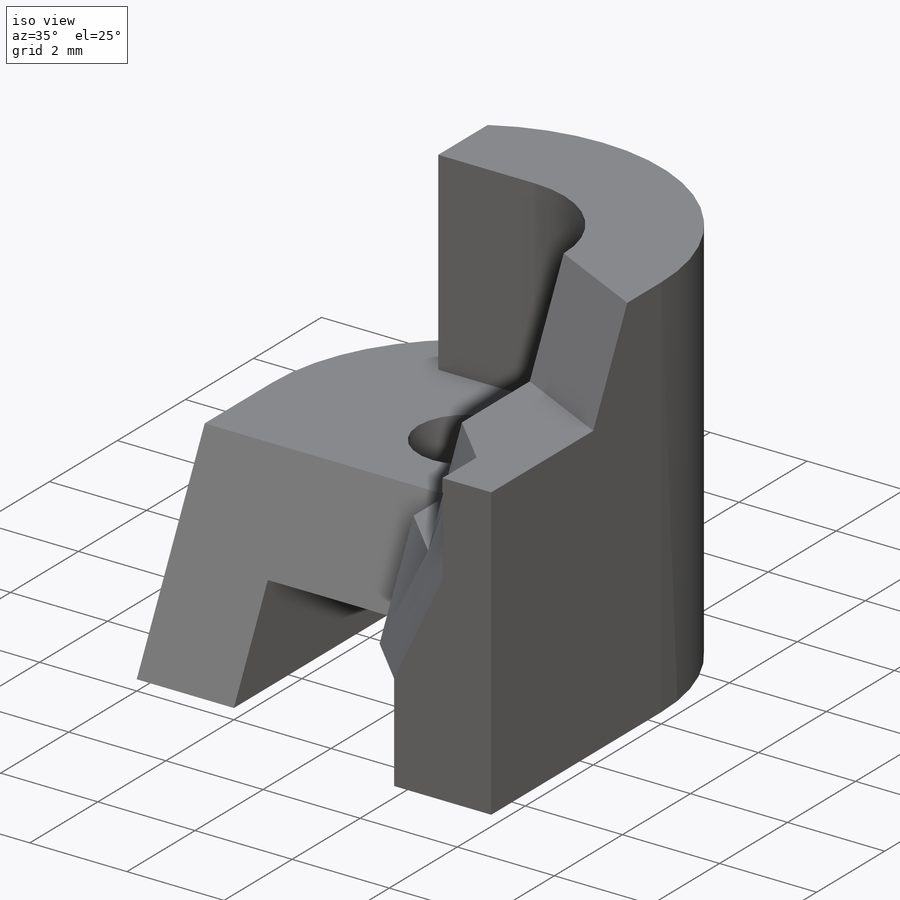
[diagram: iso view]
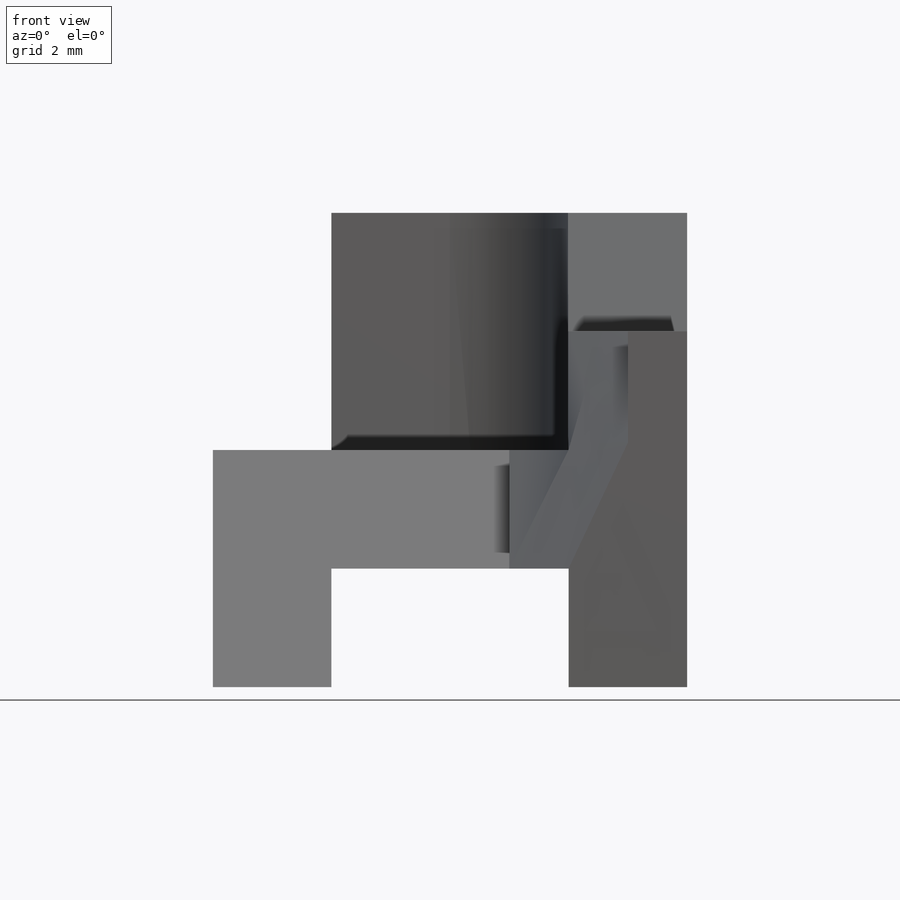
[diagram: front view]
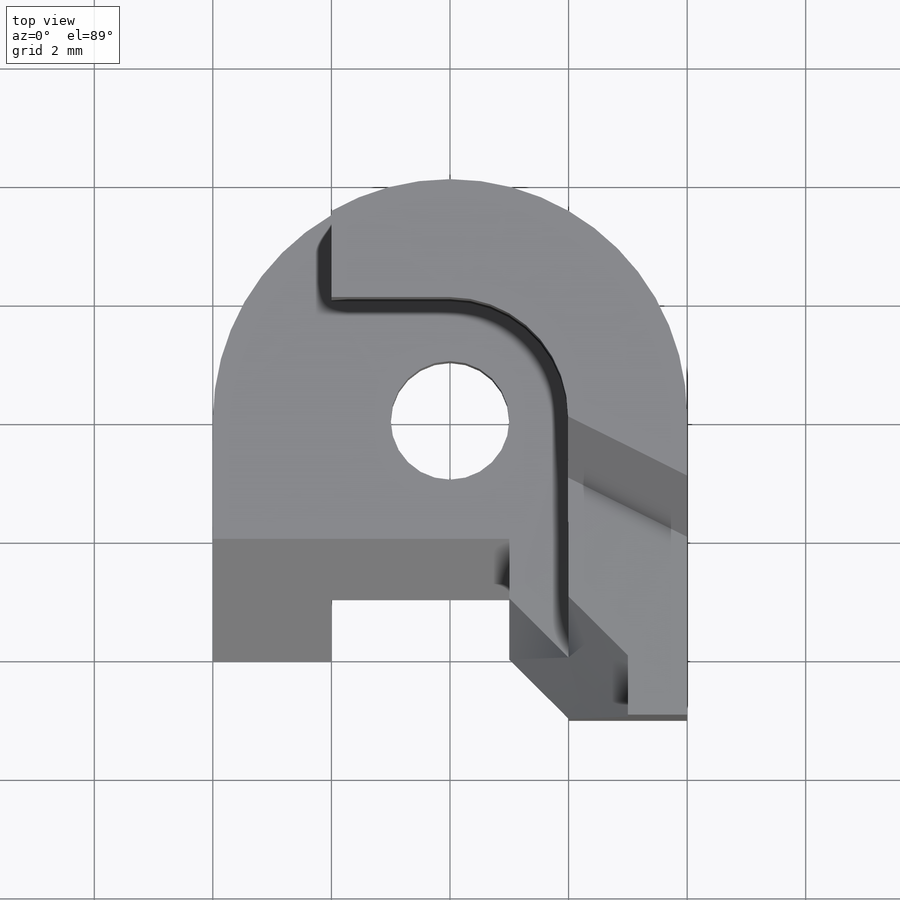
[diagram: top view]
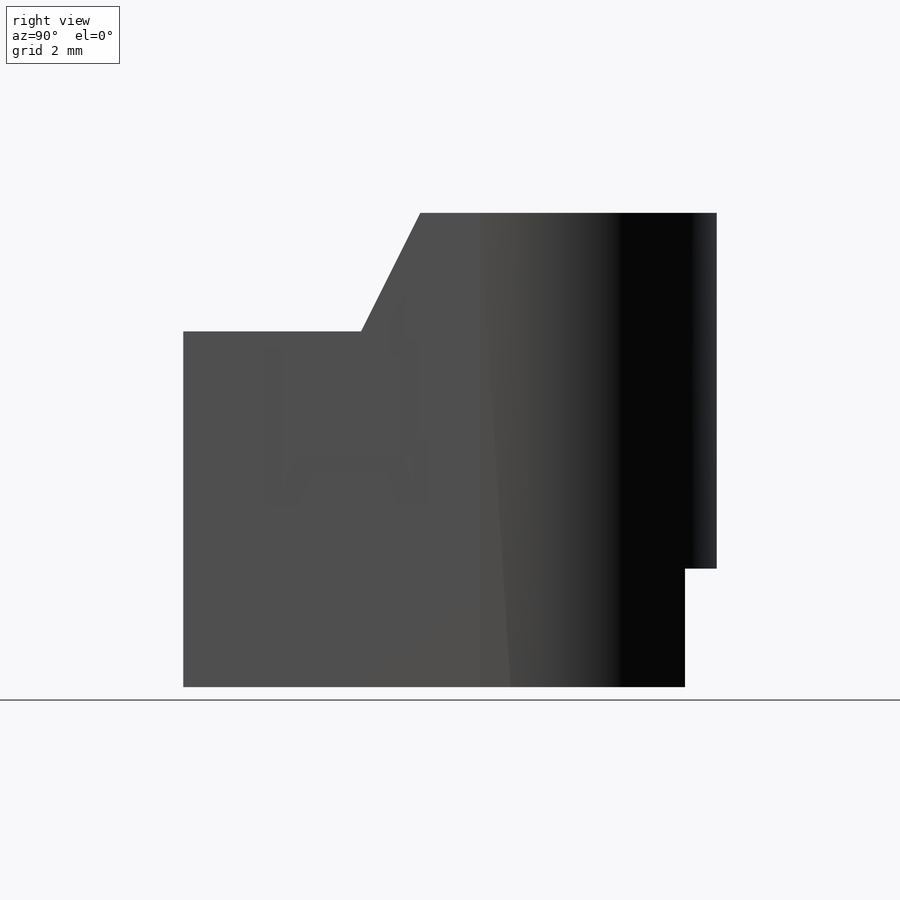
[diagram: right view]
SOLIDWORKS PART (.sldprt)
format: sldprt  version: not decoded by parser v0  size: 299,008 bytes
history: native  units: mm
features: sketch x7, cut_extrude x5, extrude x2, material x1 (+13 scaffold rows collapsed)
feature tree (28):
  scaffold x13  (default folders/planes/origin — collapsed)
  material  "Material <not specified>"
  sketch  "Sketch2"  dims[D1=4.0mm D9=2.0mm D2=0.0mm D3=5.0mm D4=2.0mm D5=2.0mm D6=1.0mm D7=1.0mm D8=2.0mm]
  extrude  "Boss-Extrude1"  Depth=4mm
  sketch  "Sketch3"  dims[D1=2.0mm]
  cut_extrude  "Cut-Extrude1"  Depth=5mm
  sketch  "Sketch4"  dims[D1=2.0mm D2=2.0mm D3=2.0mm]
  cut_extrude  "Cut-Extrude2"  Depth=15mm
  sketch  "Sketch5"  dims[D2=4.0mm D3=2.0mm D1=2.0mm]
  extrude  "Boss-Extrude2"  Depth=4mm
  sketch  "Sketch6"  dims[D1=3.0mm D2=4.0mm]
  cut_extrude  "Cut-Extrude3"  Depth=2mm
  sketch  "3DSketch1"  dims[D1=1.0mm D2=1.0mm]
  cut_extrude  "Cut-Extrude4"  Depth=2mm
  sketch  "3DSketch3"  dims[c1.D1=~0.999452mm c1.D2=~0.999452mm c2.D1=~0.999452mm c2.D2=~0.999452mm c3.D1=2.0mm c3.D2=4.0mm c3.D3=~1.227537mm c3.D4=~1.227537mm c4.D3=~1.001951mm c4.D4=~1.001951mm c5.D3=1.0mm c5.D4=~1.885382mm c5.D5=~1.001951mm c5.D6=~1.001951mm c6.D4=1.0mm c6.D5=1.0mm]
  cut_extrude  "Cut-Extrude11"  Depth=11mm
decode coverage: 14 of 14 modeling features carry decoded parameters
note: ~ marks probable driven/reference dimensions
note: suppression state not decoded; provenance and decode notes live in map.json
